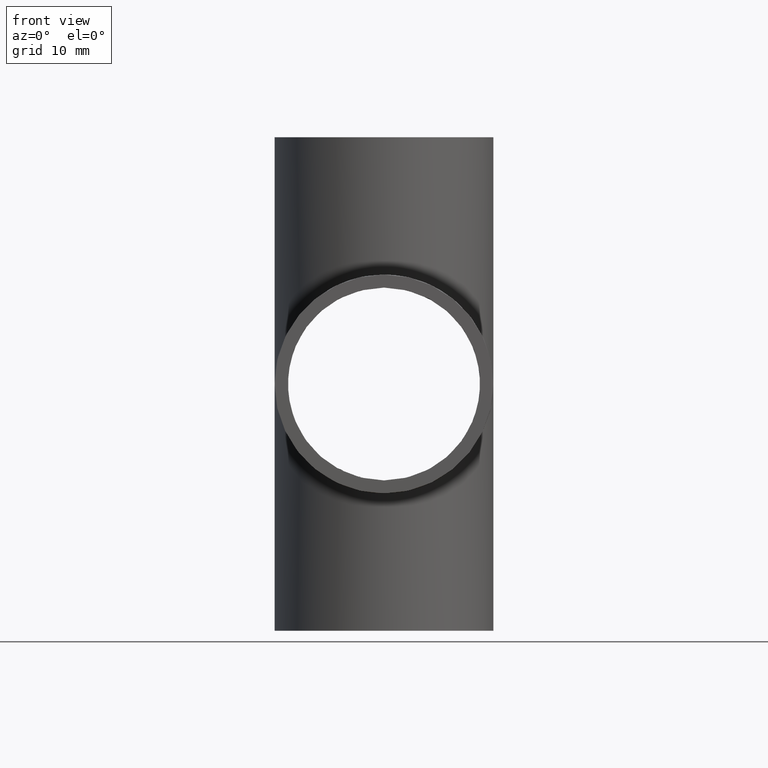
[diagram: clean part render]
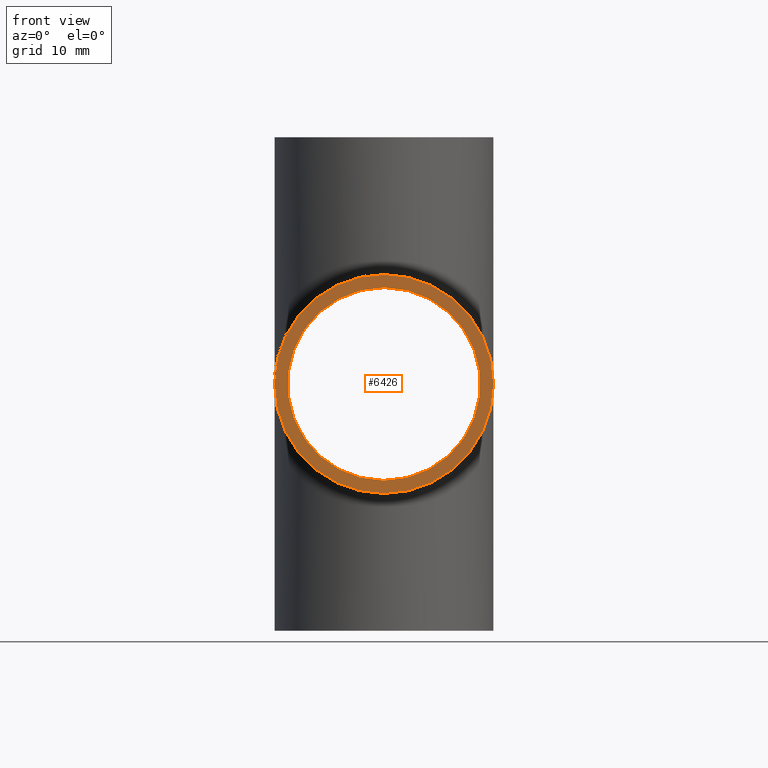
[diagram: same view with one face highlighted and labeled with its STEP entity id]
A machine part, front view. The second image highlights one B-rep face of the part: STEP entity #6426.
In plain terms, the highlighted planar face has unit normal (0, 1, 0).
Its self-contained STEP definition (entity closure, byte-faithful):
#237 = ORIENTED_EDGE ( 'NONE', *, *, #8628, .T. ) ;
#585 = DIRECTION ( 'NONE',  ( 0.0000000000000000000, 1.000000000000000000, 0.0000000000000000000 ) ) ;
#1153 = DIRECTION ( 'NONE',  ( 0.0000000000000000000, 1.000000000000000000, 0.0000000000000000000 ) ) ;
#1629 = CARTESIAN_POINT ( 'NONE',  ( 0.0000000000000000000, -38.00000000000000000, 0.0000000000000000000 ) ) ;
#1637 = DIRECTION ( 'NONE',  ( 0.0000000000000000000, 1.000000000000000000, 0.0000000000000000000 ) ) ;
#1866 = CIRCLE ( 'NONE', #10366, 14.85000000000000000 ) ;
#2327 = FACE_BOUND ( 'NONE', #8259, .T. ) ;
#2492 = VERTEX_POINT ( 'NONE', #5876 ) ;
#2514 = DIRECTION ( 'NONE',  ( 0.0000000000000000000, 0.0000000000000000000, 1.000000000000000000 ) ) ;
#2872 = EDGE_LOOP ( 'NONE', ( #3634, #3642 ) ) ;
#3193 = CARTESIAN_POINT ( 'NONE',  ( 0.0000000000000000000, -38.00000000000000000, 0.0000000000000000000 ) ) ;
#3634 = ORIENTED_EDGE ( 'NONE', *, *, #6825, .F. ) ;
#3642 = ORIENTED_EDGE ( 'NONE', *, *, #4136, .F. ) ;
#4061 = DIRECTION ( 'NONE',  ( 0.0000000000000000000, 0.0000000000000000000, 1.000000000000000000 ) ) ;
#4098 = AXIS2_PLACEMENT_3D ( 'NONE', #1629, #7686, #2514 ) ;
#4136 = EDGE_CURVE ( 'NONE', #10116, #8126, #8016, .T. ) ;
#4716 = VERTEX_POINT ( 'NONE', #6907 ) ;
#5115 = AXIS2_PLACEMENT_3D ( 'NONE', #3193, #9303, #4061 ) ;
#5785 = PLANE ( 'NONE',  #7652 ) ;
#5876 = CARTESIAN_POINT ( 'NONE',  ( 0.0000000000000000000, -38.00000000000000000, -14.85000000000000000 ) ) ;
#6348 = CARTESIAN_POINT ( 'NONE',  ( 0.0000000000000000000, -38.00000000000000000, 0.0000000000000000000 ) ) ;
#6426 = ADVANCED_FACE ( 'NONE', ( #2327, #6922 ), #5785, .F. ) ;
#6527 = ORIENTED_EDGE ( 'NONE', *, *, #10051, .T. ) ;
#6563 = AXIS2_PLACEMENT_3D ( 'NONE', #6348, #1153, #7238 ) ;
#6666 = DIRECTION ( 'NONE',  ( 0.0000000000000000000, -0.0000000000000000000, 1.000000000000000000 ) ) ;
#6825 = EDGE_CURVE ( 'NONE', #8126, #10116, #9400, .T. ) ;
#6834 = CARTESIAN_POINT ( 'NONE',  ( 0.0000000000000000000, -38.00000000000000000, 0.0000000000000000000 ) ) ;
#6907 = CARTESIAN_POINT ( 'NONE',  ( 1.818600496733819600E-015, -38.00000000000000000, 14.85000000000000000 ) ) ;
#6922 = FACE_OUTER_BOUND ( 'NONE', #2872, .T. ) ;
#7238 = DIRECTION ( 'NONE',  ( 0.0000000000000000000, 0.0000000000000000000, 1.000000000000000000 ) ) ;
#7652 = AXIS2_PLACEMENT_3D ( 'NONE', #9275, #585, #6666 ) ;
#7686 = DIRECTION ( 'NONE',  ( 0.0000000000000000000, 1.000000000000000000, 0.0000000000000000000 ) ) ;
#7694 = DIRECTION ( 'NONE',  ( 0.0000000000000000000, 0.0000000000000000000, 1.000000000000000000 ) ) ;
#7741 = CARTESIAN_POINT ( 'NONE',  ( 0.0000000000000000000, -38.00000000000000000, -16.85000000000000100 ) ) ;
#8016 = CIRCLE ( 'NONE', #4098, 16.85000000000000100 ) ;
#8126 = VERTEX_POINT ( 'NONE', #7741 ) ;
#8259 = EDGE_LOOP ( 'NONE', ( #237, #6527 ) ) ;
#8628 = EDGE_CURVE ( 'NONE', #2492, #4716, #1866, .T. ) ;
#9275 = CARTESIAN_POINT ( 'NONE',  ( 0.0000000000000000000, -38.00000000000000000, 0.0000000000000000000 ) ) ;
#9303 = DIRECTION ( 'NONE',  ( 0.0000000000000000000, 1.000000000000000000, 0.0000000000000000000 ) ) ;
#9400 = CIRCLE ( 'NONE', #5115, 16.85000000000000100 ) ;
#9915 = CARTESIAN_POINT ( 'NONE',  ( 2.063529856563290200E-015, -38.00000000000000000, 16.85000000000000100 ) ) ;
#10051 = EDGE_CURVE ( 'NONE', #4716, #2492, #11233, .T. ) ;
#10116 = VERTEX_POINT ( 'NONE', #9915 ) ;
#10366 = AXIS2_PLACEMENT_3D ( 'NONE', #6834, #1637, #7694 ) ;
#11233 = CIRCLE ( 'NONE', #6563, 14.85000000000000000 ) ;